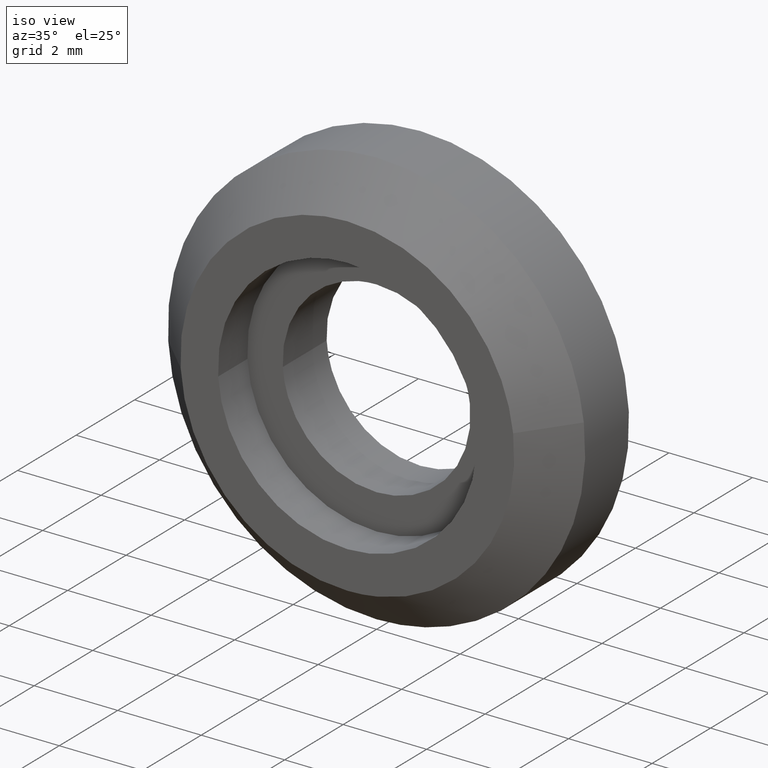
[diagram: clean part render]
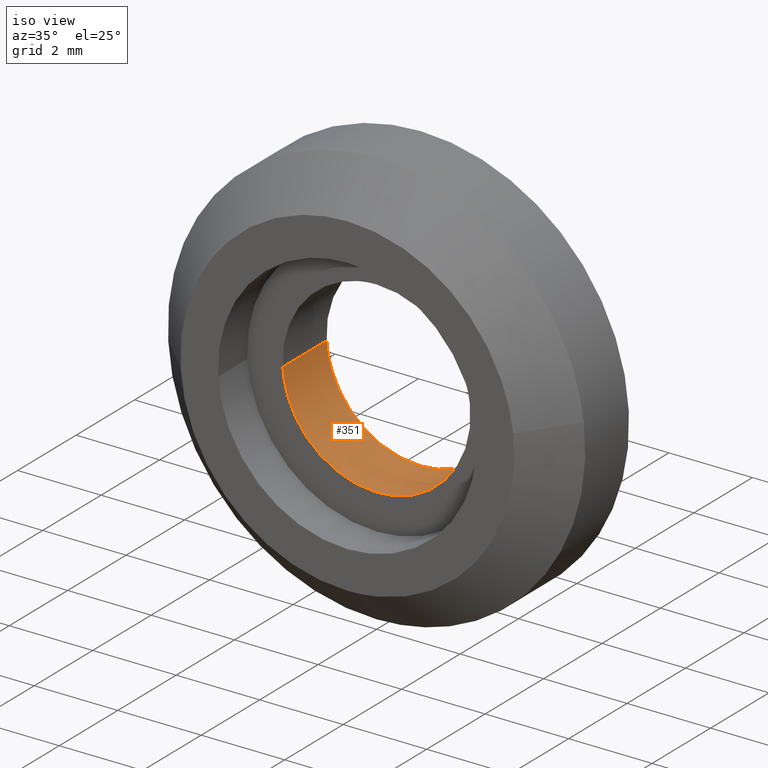
[diagram: same view with one face highlighted and labeled with its STEP entity id]
A machine part, iso view. The second image highlights one B-rep face of the part: STEP entity #351.
In plain terms, the highlighted face is a freeform B-spline surface patch.
Its self-contained STEP definition (entity closure, byte-faithful):
#245=CARTESIAN_POINT('',(2.230330543402312,-0.037500000000000,0.298731326247749));
#246=CARTESIAN_POINT('',(2.232306544374755,-0.037500000000000,0.282107439157308));
#247=CARTESIAN_POINT('',(2.241872134759362,-0.037500000000000,0.201633139435450));
#248=CARTESIAN_POINT('',(2.245803296449200,-0.037500000000000,0.137359213953428));
#249=CARTESIAN_POINT('',(2.383162510402629,-0.037500000000000,-2.108444082495772));
#250=CARTESIAN_POINT('',(0.137359213953428,-0.037500000000000,-2.245803296449200));
#251=CARTESIAN_POINT('',(-2.108444082495772,-0.037500000000000,-2.383162510402629));
#252=CARTESIAN_POINT('',(-2.246791158978780,-0.037500000000000,-0.121207804364544));
#253=CARTESIAN_POINT('',(-2.247773153405460,-0.037500000000000,-0.105152337410000));
#254=CARTESIAN_POINT('',(2.230330543402312,1.538437500000001,0.298731326247749));
#255=CARTESIAN_POINT('',(2.232306544374755,1.538437500000000,0.282107439157308));
#256=CARTESIAN_POINT('',(2.241872134759362,1.538437500000001,0.201633139435450));
#257=CARTESIAN_POINT('',(2.245803296449200,1.538437500000000,0.137359213953428));
#258=CARTESIAN_POINT('',(2.383162510402629,1.538437500000001,-2.108444082495772));
#259=CARTESIAN_POINT('',(0.137359213953428,1.538437500000000,-2.245803296449200));
#260=CARTESIAN_POINT('',(-2.108444082495772,1.538437500000001,-2.383162510402629));
#261=CARTESIAN_POINT('',(-2.246791158978780,1.538437500000000,-0.121207804364544));
#262=CARTESIAN_POINT('',(-2.247773153405460,1.538437500000001,-0.105152337410000));
#270=(BOUNDED_SURFACE()B_SPLINE_SURFACE(2,1,((#245,#254),(#246,#255),(#247,#256),(#248,#257),(#249,#258),(#250,#259),(#251,#260),(#252,#261),(#253,#262)),.UNSPECIFIED.,.F.,.F.,.U.)B_SPLINE_SURFACE_WITH_KNOTS((3,1,2,2,1,3),(2,2),(0.0,0.038021229159559,0.187138111613873,3.915060172971728,7.642982234329582,7.681011348515430),(0.0,1.0),.UNSPECIFIED.)GEOMETRIC_REPRESENTATION_ITEM()RATIONAL_B_SPLINE_SURFACE(((0.972009297806160,0.972009297806160),(0.974757549300643,0.974757549300643),(0.988284271247462,0.988284271247462),(1.0,1.0),(0.707106781186548,0.707106781186548),(1.0,1.0),(0.707106781186548,0.707106781186548),(1.002987849391481,1.002987849391481),(1.005975698782962,1.005975698782962)))REPRESENTATION_ITEM('')SURFACE());
#271=CARTESIAN_POINT('',(2.234271807760320,1.499999999999976,0.265573886211392));
#272=VERTEX_POINT('',#271);
#273=CARTESIAN_POINT('',(0.0,1.500000000000000,-2.250000000000000));
#274=VERTEX_POINT('',#273);
#275=CARTESIAN_POINT('',(2.234271807760319,1.499999999999977,0.265573886211392));
#276=CARTESIAN_POINT('',(2.250000000000000,1.500000000000000,0.133252681726796));
#277=CARTESIAN_POINT('',(2.250000000000000,1.500000000000000,0.0));
#278=CARTESIAN_POINT('',(2.250000000000000,1.500000000000000,-2.250000000000000));
#279=CARTESIAN_POINT('',(0.0,1.500000000000000,-2.250000000000000));
#287=(BOUNDED_CURVE()B_SPLINE_CURVE(2,(#275,#276,#277,#278,#279),.UNSPECIFIED.,.F.,.U.)B_SPLINE_CURVE_WITH_KNOTS((3,2,3),(0.229562711163027,0.250000000000000,0.500000000000000),.UNSPECIFIED.)CURVE()GEOMETRIC_REPRESENTATION_ITEM()RATIONAL_B_SPLINE_CURVE((0.956027219987011,0.976056226754875,1.0,0.707106781186547,1.0))REPRESENTATION_ITEM(''));
#288=EDGE_CURVE('',#272,#274,#287,.T.);
#289=ORIENTED_EDGE('',*,*,#288,.T.);
#290=CARTESIAN_POINT('',(-2.245803520840400,1.499999999999997,-0.137355545091388));
#291=VERTEX_POINT('',#290);
#292=CARTESIAN_POINT('',(0.0,1.500000000000000,-2.250000000000000));
#293=CARTESIAN_POINT('',(-2.116592114771839,1.500000000000000,-2.250000000000001));
#294=CARTESIAN_POINT('',(-2.245803520840400,1.499999999999997,-0.137355545091388));
#302=(BOUNDED_CURVE()B_SPLINE_CURVE(2,(#292,#293,#294),.UNSPECIFIED.,.F.,.U.)B_SPLINE_CURVE_WITH_KNOTS((3,3),(0.500000000000000,0.739333244123512),.UNSPECIFIED.)CURVE()GEOMETRIC_REPRESENTATION_ITEM()RATIONAL_B_SPLINE_CURVE((1.0,0.719603663038395,0.976072645799753))REPRESENTATION_ITEM(''));
#303=EDGE_CURVE('',#274,#291,#302,.T.);
#304=ORIENTED_EDGE('',*,*,#303,.T.);
#305=CARTESIAN_POINT('',(-2.245803518071988,3.469447E-017,-0.137355590356938));
#306=VERTEX_POINT('',#305);
#307=CARTESIAN_POINT('',(-2.245803518071988,3.469447E-017,-0.137355590356938));
#308=CARTESIAN_POINT('',(-2.245803520840400,1.499999999999997,-0.137355545091388));
#309=QUASI_UNIFORM_CURVE('',1,(#307,#308),.UNSPECIFIED.,.F.,.U.);
#310=EDGE_CURVE('',#306,#291,#309,.T.);
#311=ORIENTED_EDGE('',*,*,#310,.F.);
#312=CARTESIAN_POINT('',(0.0,0.0,-2.250000000000000));
#313=VERTEX_POINT('',#312);
#314=CARTESIAN_POINT('',(0.0,0.0,-2.250000000000000));
#315=CARTESIAN_POINT('',(-2.116592072030913,0.0,-2.250000000000000));
#316=CARTESIAN_POINT('',(-2.245803518071988,3.469447E-017,-0.137355590356937));
#324=(BOUNDED_CURVE()B_SPLINE_CURVE(2,(#314,#315,#316),.UNSPECIFIED.,.F.,.U.)B_SPLINE_CURVE_WITH_KNOTS((3,3),(0.500000000000000,0.739333240645724),.UNSPECIFIED.)CURVE()GEOMETRIC_REPRESENTATION_ITEM()RATIONAL_B_SPLINE_CURVE((1.0,0.719603667112877,0.976072638346172))REPRESENTATION_ITEM(''));
#325=EDGE_CURVE('',#313,#306,#324,.T.);
#326=ORIENTED_EDGE('',*,*,#325,.F.);
#327=CARTESIAN_POINT('',(2.234271803154819,3.194357E-017,0.265573924957907));
#328=VERTEX_POINT('',#327);
#329=CARTESIAN_POINT('',(2.234271803154818,3.194357E-017,0.265573924957907));
#330=CARTESIAN_POINT('',(2.250000000000000,0.0,0.133252701304857));
#331=CARTESIAN_POINT('',(2.250000000000000,0.0,0.0));
#332=CARTESIAN_POINT('',(2.250000000000000,0.0,-2.250000000000000));
#333=CARTESIAN_POINT('',(0.0,0.0,-2.250000000000000));
#341=(BOUNDED_CURVE()B_SPLINE_CURVE(2,(#329,#330,#331,#332,#333),.UNSPECIFIED.,.F.,.U.)B_SPLINE_CURVE_WITH_KNOTS((3,2,3),(0.229562708232189,0.250000000000000,0.500000000000000),.UNSPECIFIED.)CURVE()GEOMETRIC_REPRESENTATION_ITEM()RATIONAL_B_SPLINE_CURVE((0.956027214242435,0.976056223321185,1.0,0.707106781186547,1.0))REPRESENTATION_ITEM(''));
#342=EDGE_CURVE('',#328,#313,#341,.T.);
#343=ORIENTED_EDGE('',*,*,#342,.F.);
#344=CARTESIAN_POINT('',(2.234271803154819,3.194357E-017,0.265573924957907));
#345=CARTESIAN_POINT('',(2.234271807760320,1.499999999999976,0.265573886211392));
#346=QUASI_UNIFORM_CURVE('',1,(#344,#345),.UNSPECIFIED.,.F.,.U.);
#347=EDGE_CURVE('',#328,#272,#346,.T.);
#348=ORIENTED_EDGE('',*,*,#347,.T.);
#349=EDGE_LOOP('',(#289,#304,#311,#326,#343,#348));
#350=FACE_OUTER_BOUND('',#349,.T.);
#351=ADVANCED_FACE('',(#350),#270,.F.);